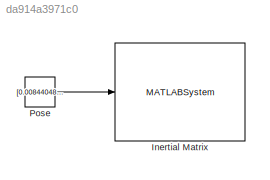
MODEL slx_da914a3971c0
KIND model
CONFIG AbsTol = auto
CONFIG EnableMultiTasking = off
CONFIG FixedStep = auto
CONFIG MaxStep = auto
CONFIG MinStep = auto
CONFIG RelTol = 1e-3
CONFIG SampleTimeConstraint = Unconstrained
CONFIG Solver = VariableStepAuto
CONFIG SolverName = VariableStepAuto
CONFIG StartTime = 0.0
CONFIG StopTime = 10.0
BLOCK [MATLABSystem] Inertial Matrix
  MaskDisplay = disp('InertiaMatrixBlock');\nport_label('input',1,'q_fil');\nport_label('output',1,'M');
  MaskType = InertiaMatrixBlock
  Ports = [1, 1]
  SimulateUsing = Code generation
  System = InertiaMatrixBlock
BLOCK [Constant] Pose
  Value = [0.00844048081261178\n0.0123485470446897\n1.02243093140889\n-0.00795483287531301\n-0.00321945405185190\n-0.00249158818419948\n-0.0275502949504261\n-0.00119650501455080\n0.392219712702510\n-1.04363424165807\n-0.0598851718520668\n1.38367463912266\n-1.54562609891067\n0.00739378739760879\n0.00113514578303537\n0.702179705654652\n-1.49774049177184\n0.00310391425048735\n1.72058715388695\n-1.70376945139276]
LINE Pose:1 -> Inertial Matrix:1
